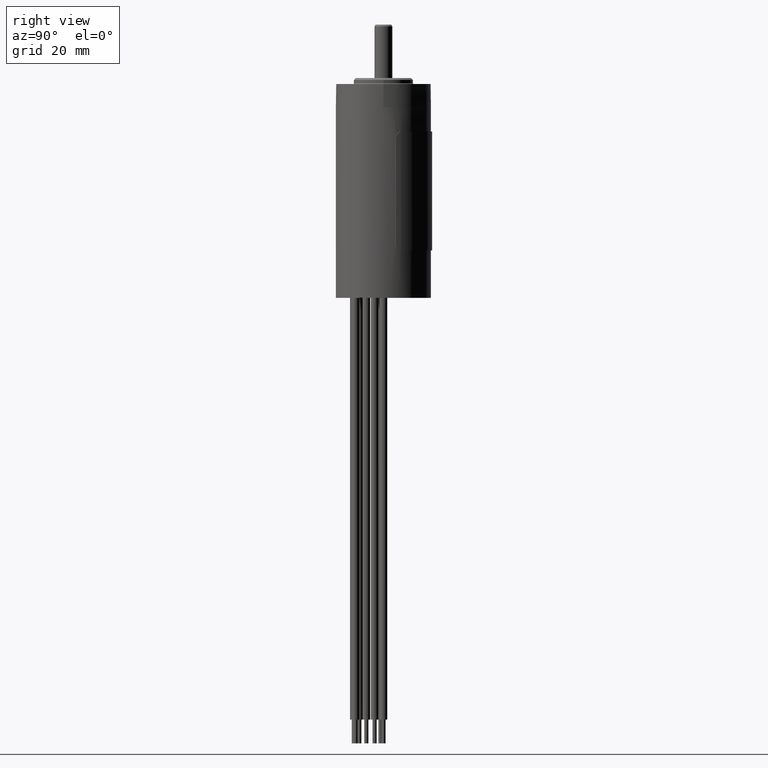
[diagram: clean part render]
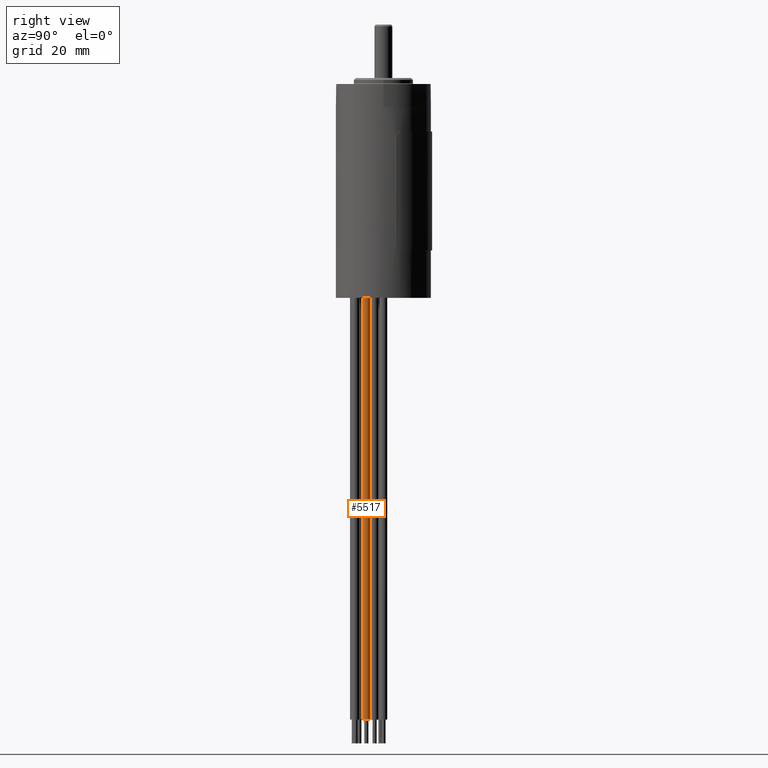
[diagram: same view with one face highlighted and labeled with its STEP entity id]
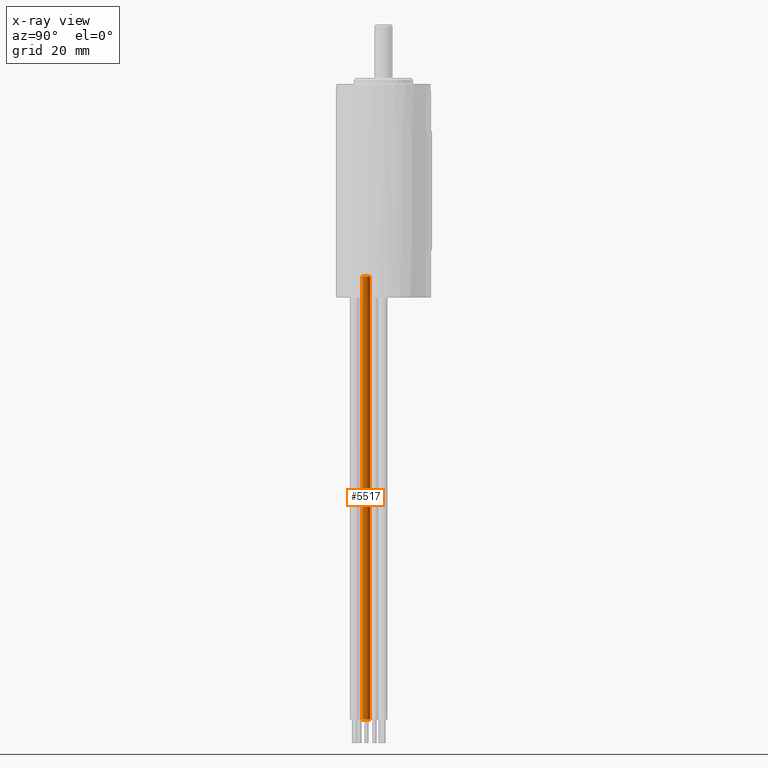
[diagram: x-ray of the same camera — body ghosted, the highlighted face saturated]
A machine part, right view. The second image highlights one B-rep face of the part: STEP entity #5517.
The next image is the same camera in x-ray: the body ghosted, the highlighted face saturated — about 0% of this face is hidden behind the body in this view.
In plain terms, the highlighted cylindrical surface (edge-blend (fillet) strip) has radius 0.65 mm, axis along (0, 0, 1).
Its self-contained STEP definition (entity closure, byte-faithful):
#753=CARTESIAN_POINT('',(4.979646071761E0,-2.875E0,2.6E0));
#754=DIRECTION('',(0.E0,0.E0,-1.E0));
#755=DIRECTION('',(0.E0,1.E0,0.E0));
#756=AXIS2_PLACEMENT_3D('',#753,#754,#755);
#1693=DIRECTION('',(0.E0,0.E0,-1.E0));
#1694=VECTOR('',#1693,7.46E1);
#1695=CARTESIAN_POINT('',(4.979646071761E0,-2.225E0,2.6E0));
#1696=LINE('',#1695,#1694);
#1697=DIRECTION('',(0.E0,0.E0,1.E0));
#1698=VECTOR('',#1697,7.46E1);
#1699=CARTESIAN_POINT('',(4.979646071761E0,-3.525E0,-7.2E1));
#1700=LINE('',#1699,#1698);
#1706=CARTESIAN_POINT('',(4.979646071761E0,-2.875E0,-7.2E1));
#1707=DIRECTION('',(0.E0,0.E0,1.E0));
#1708=DIRECTION('',(0.E0,-1.E0,0.E0));
#1709=AXIS2_PLACEMENT_3D('',#1706,#1707,#1708);
#3102=CARTESIAN_POINT('',(4.979646071761E0,-2.225E0,-7.2E1));
#3103=CARTESIAN_POINT('',(4.979646071761E0,-3.525E0,-7.2E1));
#3104=VERTEX_POINT('',#3102);
#3105=VERTEX_POINT('',#3103);
#3453=CARTESIAN_POINT('',(4.979646071761E0,-2.225E0,2.6E0));
#3454=CARTESIAN_POINT('',(4.979646071761E0,-3.525E0,2.6E0));
#3455=VERTEX_POINT('',#3453);
#3456=VERTEX_POINT('',#3454);
#5505=CARTESIAN_POINT('',(4.979646071761E0,-2.875E0,-7.3492E1));
#5506=DIRECTION('',(0.E0,0.E0,1.E0));
#5507=DIRECTION('',(0.E0,1.E0,0.E0));
#5508=AXIS2_PLACEMENT_3D('',#5505,#5506,#5507);
#5509=CYLINDRICAL_SURFACE('',#5508,6.5E-1);
#5510=ORIENTED_EDGE('',*,*,#4390,.F.);
#5511=ORIENTED_EDGE('',*,*,#5500,.T.);
#5513=ORIENTED_EDGE('',*,*,#5512,.F.);
#5514=ORIENTED_EDGE('',*,*,#5496,.T.);
#5515=EDGE_LOOP('',(#5510,#5511,#5513,#5514));
#5516=FACE_OUTER_BOUND('',#5515,.F.);
#5517=ADVANCED_FACE('',(#5516),#5509,.T.);
#757=CIRCLE('',#756,6.5E-1);
#1710=CIRCLE('',#1709,6.5E-1);
#4390=EDGE_CURVE('',#3455,#3456,#757,.T.);
#5496=EDGE_CURVE('',#3105,#3456,#1700,.T.);
#5500=EDGE_CURVE('',#3455,#3104,#1696,.T.);
#5512=EDGE_CURVE('',#3105,#3104,#1710,.T.);